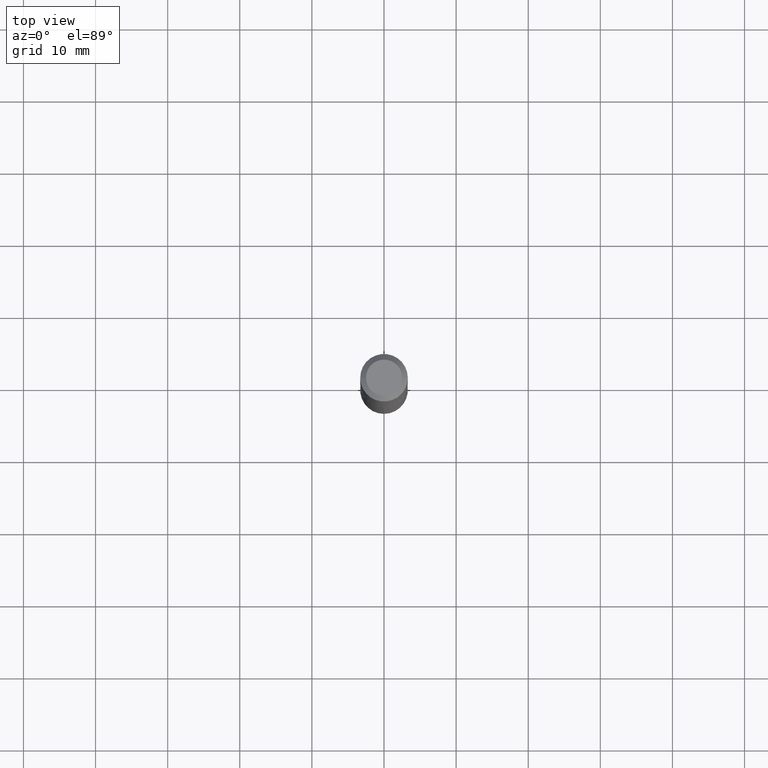
[diagram: clean part render]
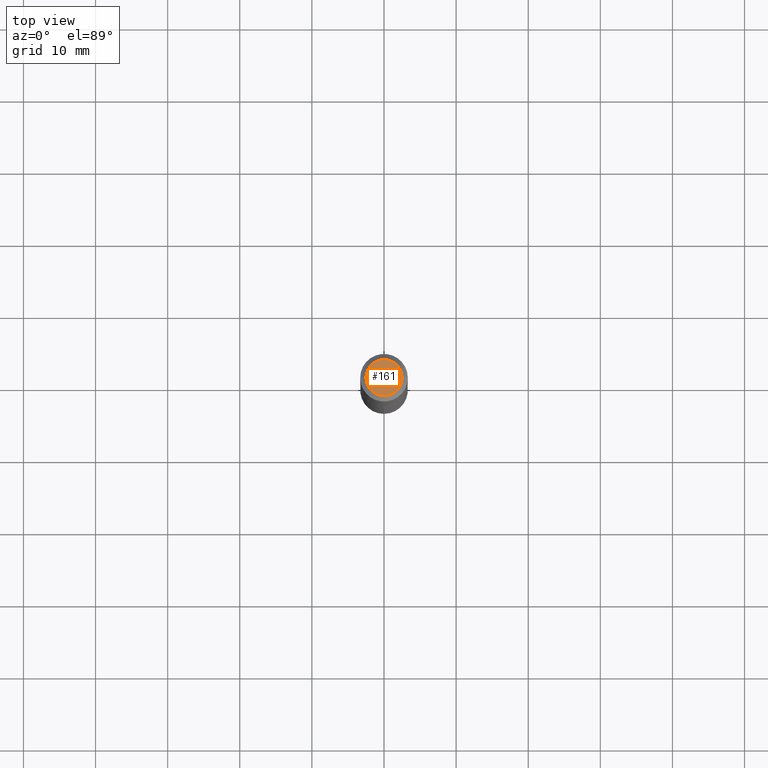
[diagram: same view with one face highlighted and labeled with its STEP entity id]
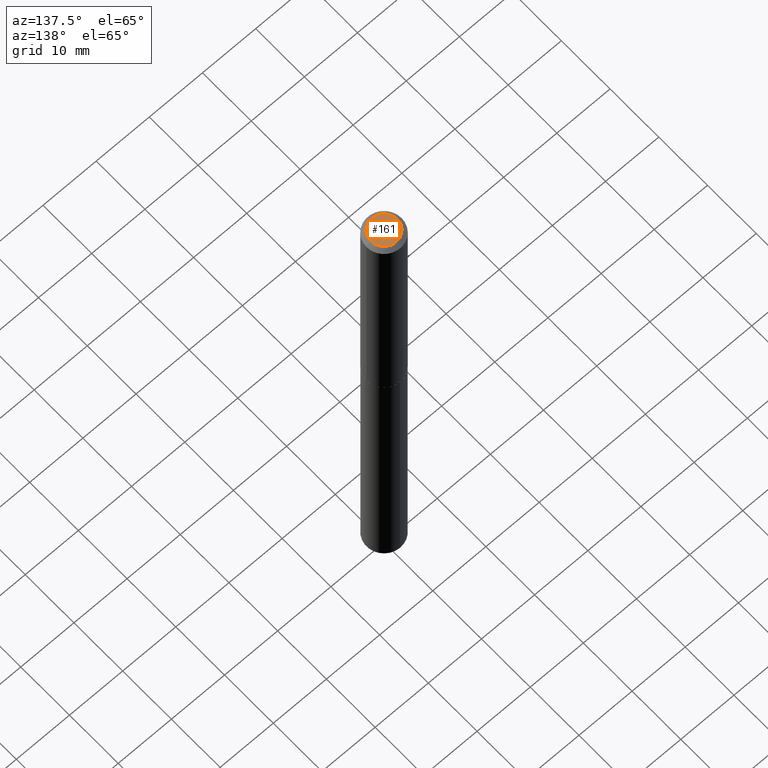
[diagram: same view with one face highlighted and labeled with its STEP entity id]
A machine part, top view. The second image highlights one B-rep face of the part: STEP entity #161.
A second angle (auxiliary view) of the same face is appended — the face is thin or edge-on in the first view.
In plain terms, the highlighted planar face has unit normal (0, -0, -1).
Its self-contained STEP definition (entity closure, byte-faithful):
#7 = DIRECTION ( 'NONE',  ( 2.438088387897960049E-29, -3.491481338843145188E-15, -1.000000000000000000 ) ) ;
#15 = ORIENTED_EDGE ( 'NONE', *, *, #123, .T. ) ;
#27 = CARTESIAN_POINT ( 'NONE',  ( -0.09864999999999998770, 7.434236640731735244E-16, 4.776122516624595065E-19 ) ) ;
#31 = PLANE ( 'NONE',  #46 ) ;
#40 = DIRECTION ( 'NONE',  ( 1.000000000000000000, -6.982962677686265922E-15, 4.876150846592043624E-29 ) ) ;
#46 = AXIS2_PLACEMENT_3D ( 'NONE', #243, #7, #118 ) ;
#53 = EDGE_LOOP ( 'NONE', ( #220, #15 ) ) ;
#63 = DIRECTION ( 'NONE',  ( 1.000000000000000000, -6.982962677686265922E-15, 4.876150846592043624E-29 ) ) ;
#66 = CARTESIAN_POINT ( 'NONE',  ( 0.09864999999999998770, -8.385378046147662997E-16, 4.776122516728078170E-19 ) ) ;
#67 = CIRCLE ( 'NONE', #362, 0.09864999999999998770 ) ;
#80 = VERTEX_POINT ( 'NONE', #27 ) ;
#118 = DIRECTION ( 'NONE',  ( -1.000000000000000000, 6.982962677686265922E-15, -4.876176775795935793E-29 ) ) ;
#119 = FACE_OUTER_BOUND ( 'NONE', #53, .T. ) ;
#123 = EDGE_CURVE ( 'NONE', #314, #80, #67, .T. ) ;
#125 = CARTESIAN_POINT ( 'NONE',  ( -1.167985862904637027E-47, 1.667574263899819231E-33, 4.776122516674675984E-19 ) ) ;
#130 = DIRECTION ( 'NONE',  ( -2.445468806185136597E-29, 3.491481338843145583E-15, 1.000000000000000000 ) ) ;
#161 = ADVANCED_FACE ( 'NONE', ( #119 ), #31, .F. ) ;
#207 = CARTESIAN_POINT ( 'NONE',  ( -1.167985862904637027E-47, 1.667574263899819231E-33, 4.776122516674675984E-19 ) ) ;
#220 = ORIENTED_EDGE ( 'NONE', *, *, #334, .T. ) ;
#243 = CARTESIAN_POINT ( 'NONE',  ( -5.839929314523185133E-48, 8.337871319499096154E-34, 2.388061258337337992E-19 ) ) ;
#303 = CIRCLE ( 'NONE', #308, 0.09864999999999998770 ) ;
#305 = DIRECTION ( 'NONE',  ( -2.445468806185136597E-29, 3.491481338843145583E-15, 1.000000000000000000 ) ) ;
#308 = AXIS2_PLACEMENT_3D ( 'NONE', #125, #130, #40 ) ;
#314 = VERTEX_POINT ( 'NONE', #66 ) ;
#334 = EDGE_CURVE ( 'NONE', #80, #314, #303, .T. ) ;
#362 = AXIS2_PLACEMENT_3D ( 'NONE', #207, #305, #63 ) ;